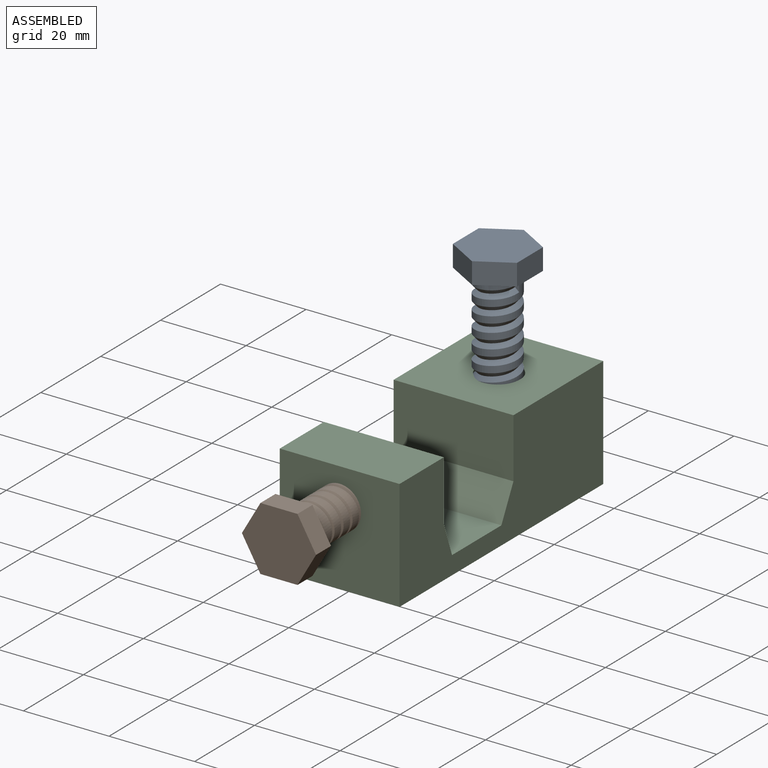
[diagram: assembled view]
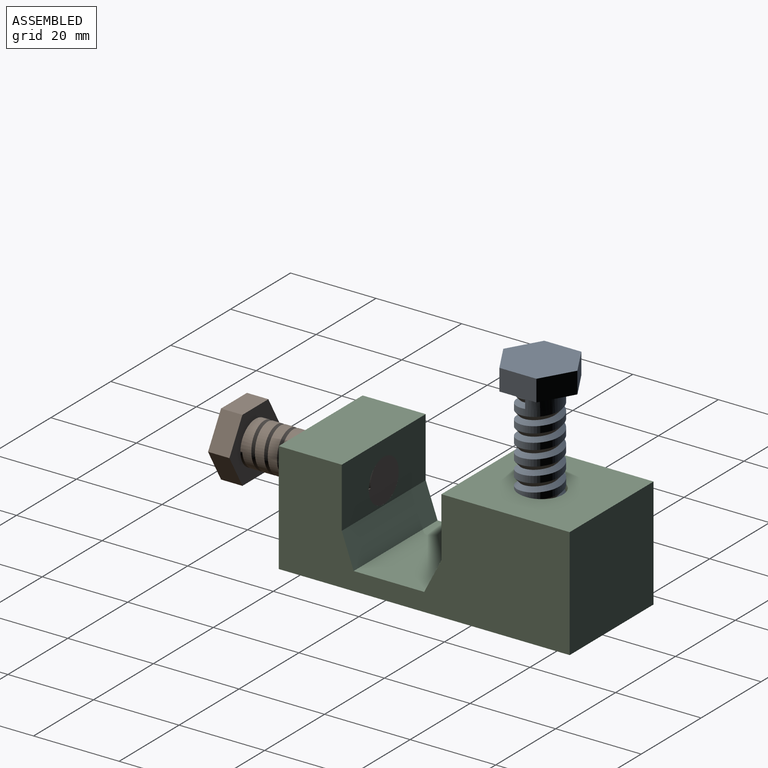
[diagram: assembled view, second angle]
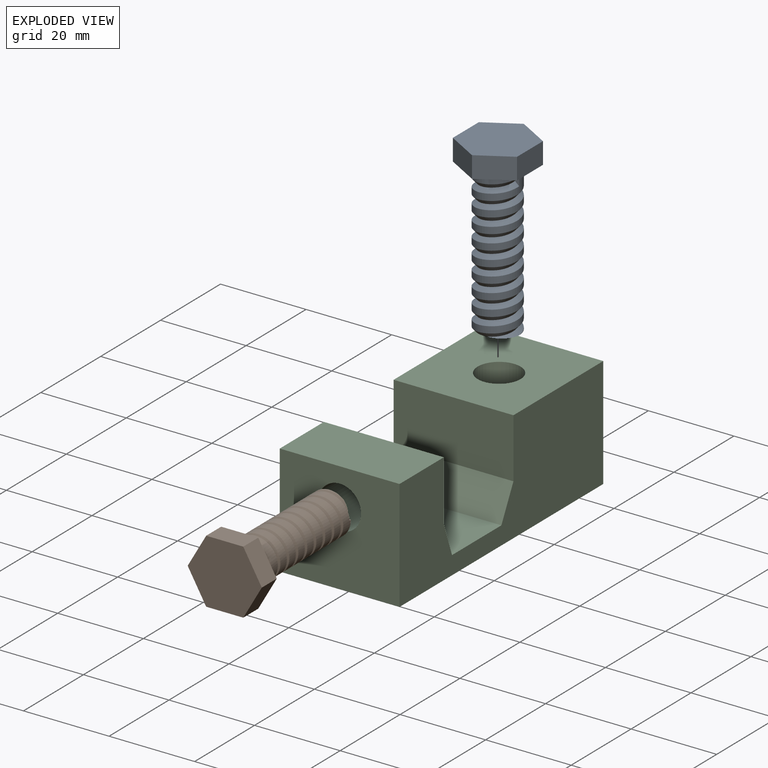
[diagram: exploded view]
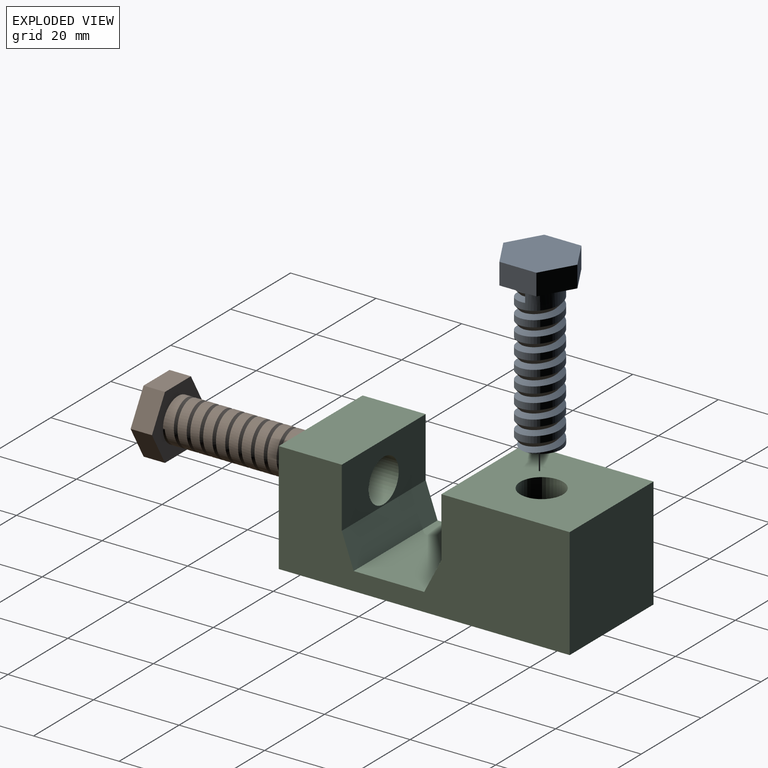
[diagram: exploded view, second angle]
ASSEMBLY  parts=3 mates=2
PART A: 22 faces, bbox 15.5x17.8x42 mm
  f0: cylinder r=5mm len=10mm, axis (0,0,-1), area 103.4mm2, adj f1,f16,f19,f21
  f1: cylinder r=5mm len=10mm, axis (0,0,-1), area 48.2mm2, adj f0,f2,f20,f21
  f2: cylinder r=5mm len=10mm, axis (0,0,-1), area 48.2mm2, adj f1,f3,f20,f21
  f3: cylinder r=5mm len=10mm, axis (0,0,-1), area 48.2mm2, adj f2,f4,f20,f21
  f4: cylinder r=5mm len=10mm, axis (0,0,-1), area 48.2mm2, adj f3,f5,f20,f21
  f5: cylinder r=5mm len=10mm, axis (0,0,-1), area 48.2mm2, adj f4,f6,f20,f21
  f6: cylinder r=5mm len=10mm, axis (0,0,-1), area 48.2mm2, adj f5,f7,f20,f21
  f7: cylinder r=5mm len=10mm, axis (0,0,-1), area 48.1mm2, adj f6,f8,f20,f21
  f8: cylinder r=5mm len=10mm, axis (0,0,-1), area 48.2mm2, adj f7,f9,f20,f21
  f9: cylinder r=5mm len=10mm, axis (0,0,-1), area 37.5mm2, adj f8,f18,f20,f21
  f10: plane 8.66x5mm, normal (1,0,0), area 43.3mm2, adj f11,f15,f16,f17
  f11: plane 7.5x5mm, normal (0.5,0.87,0), area 43.3mm2, adj f10,f12,f16,f17
  f12: plane 7.5x5mm, normal (-0.5,0.87,0), area 43.3mm2, adj f11,f13,f16,f17
  f13: plane 8.66x5mm, normal (-1,0,0), area 43.3mm2, adj f12,f14,f16,f17
  f14: plane 7.5x5mm, normal (-0.5,-0.87,0), area 43.3mm2, adj f13,f15,f16,f17
  f15: plane 7.5x5mm, normal (0.5,-0.87,0), area 43.3mm2, adj f10,f14,f16,f17
  f16: plane 17.32x15mm, normal (0,0,1), area 116.3mm2, adj f0,f10,f11,f12,f13,f14,f15
  f17: plane 17.32x15mm, normal (0,0,-1), area 194.9mm2, adj f10,f11,f12,f13,f14,f15
  f18: plane 10.34x9.58mm, normal (0,0,1), area 70.5mm2, adj f9,f20,f21
  f19: plane 1.97x0.98mm, normal (0,1,0), area 1mm2, adj f0,f20,f21
  f20: bspline ~33.53x11.55mm, area 337.6mm2, adj f1,f2,f3,f4,f5,f6,f7,f8
  f21: bspline ~34.94x11.55mm, area 394.9mm2, adj f0,f1,f2,f3,f4,f5,f6,f7
PART B: 15 faces, bbox 17.3x35.4x15 mm
  f0: cylinder r=5mm len=30mm, axis (0,1,0), area 658.2mm2, adj f1,f8,f10,f11,f13,f14
  f1: plane 10x10mm, normal (0,-1,0), area 77.1mm2, adj f0,f10,f13
  f2: plane 8.66x5mm, normal (0,0,1), area 43.3mm2, adj f3,f7,f8,f9
  f3: plane 7.5x5mm, normal (-0.87,0,0.5), area 43.3mm2, adj f2,f4,f8,f9
  f4: plane 7.5x5mm, normal (-0.87,0,-0.5), area 43.3mm2, adj f3,f5,f8,f9
  f5: plane 8.66x5mm, normal (0,0,-1), area 43.3mm2, adj f4,f6,f8,f9
  f6: plane 7.5x5mm, normal (0.87,0,-0.5), area 43.3mm2, adj f5,f7,f8,f9
  f7: plane 7.5x5mm, normal (0.87,0,0.5), area 43.3mm2, adj f2,f6,f8,f9
  f8: plane 17.32x15mm, normal (0,-1,0), area 116.3mm2, adj f0,f2,f3,f4,f5,f6,f7,f12
  f9: plane 17.32x15mm, normal (0,1,0), area 194.9mm2, adj f2,f3,f4,f5,f6,f7
  f10: plane 0.69x0.42mm, normal (0,0,1), area 0.1mm2, adj f0,f1,f14
  f11: plane 0.84x0.69mm, normal (0,0,-1), area 0.3mm2, adj f0,f12,f13,f14
  f12: cylinder r=5mm len=3.84mm, axis (0,1,0), area 0.9mm2, adj f8,f11,f14
  f13: bspline ~30.42x11.55mm, area 234.1mm2, adj f0,f1,f11,f14
  f14: bspline ~30.42x11.55mm, area 236.2mm2, adj f0,f10,f11,f12,f13
PART C: 14 faces, bbox 28x68x26 mm
  f0: plane 29.98x28mm, normal (0,0,1), area 761mm2, adj f1,f2,f6,f11,f13
  f1: plane 68x25.97mm, normal (1,0,0), area 1286.9mm2, adj f0,f3,f4,f5,f6,f7,f8,f9
  f2: plane 68x25.97mm, normal (-1,0,0), area 1286.9mm2, adj f0,f3,f4,f5,f6,f7,f8,f9
  f3: plane 68x28mm, normal (0,0,-1), area 1825.5mm2, adj f1,f2,f5,f6,f13
  f4: plane 28x14.75mm, normal (0,0,1), area 412.9mm2, adj f1,f2,f5,f7
  f5: plane 28x25.97mm, normal (0,-1,0), area 648.6mm2, adj f1,f2,f3,f4,f12
  f6: plane 28x25.97mm, normal (0,1,0), area 727.1mm2, adj f0,f1,f2,f3
  f7: plane 28x13.95mm, normal (0,1,0), area 312.2mm2, adj f1,f2,f4,f8,f12
  f8: plane 28x7.76mm, normal (0,0.94,0.34), area 230.6mm2, adj f1,f2,f7,f9
  f9: plane 28x16.48mm, normal (0,0,1), area 461.6mm2, adj f1,f2,f8,f10
  f10: plane 28x7.76mm, normal (0,-0.89,0.46), area 244.6mm2, adj f1,f2,f9,f11
  f11: plane 28x13.95mm, normal (0,-1,0), area 390.7mm2, adj f0,f1,f2,f10
  f12: cylinder r=5mm len=14.75mm, axis (0,-1,0), area 463.2mm2, adj f5,f7
  f13: cylinder r=5mm len=25.97mm, axis (0,0,-1), area 815.8mm2, adj f0,f3
PLACE A rot(axis=(1,0,0),180deg) t=(-199.36,-95.85,1.35)mm
PLACE B rot(axis=(0,0,1),180deg) t=(-211.32,-183.21,-34.35)mm
PLACE C t=(-214.05,-94.95,-51.64)mm
MATE fastened A.f18 <-> C.f13  axis (0,0,-1) through (-199.31,-110.78,-38.65)mm
MATE revolute B.f0 <-> C.f12  axis (0,1,0) through (-200.05,-148.21,-34.35)mm
